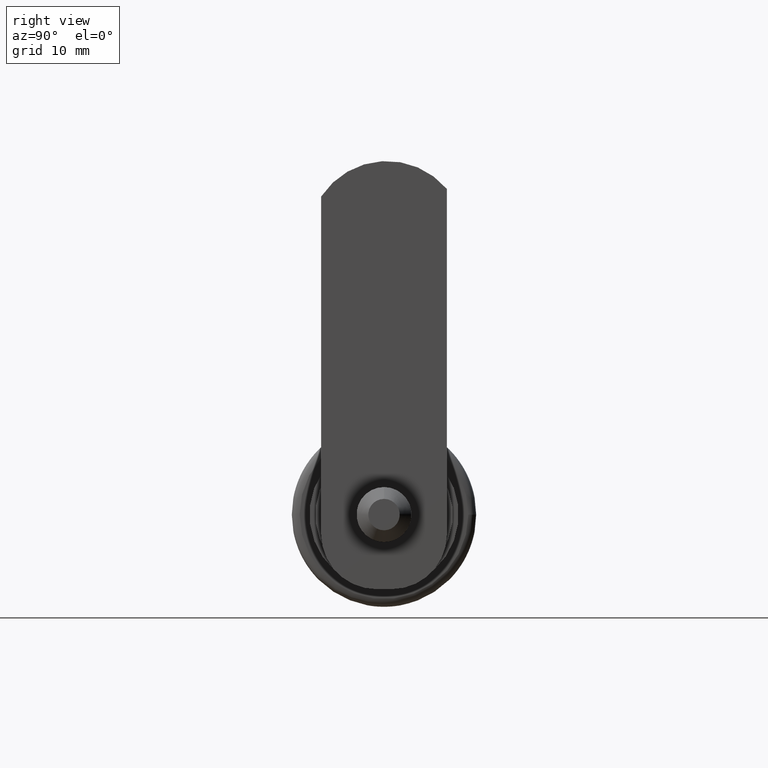
[diagram: clean part render]
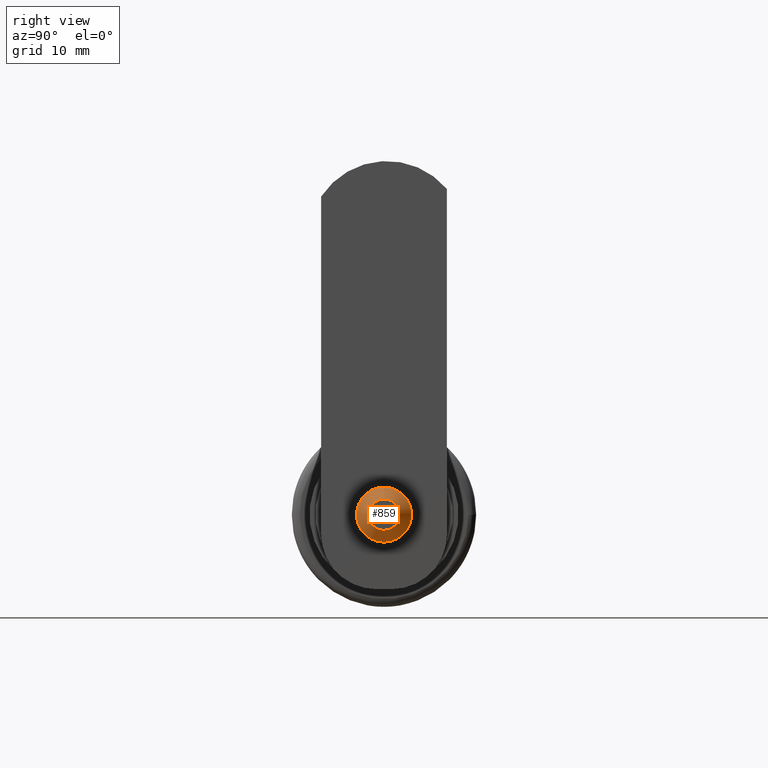
[diagram: same view with one face highlighted and labeled with its STEP entity id]
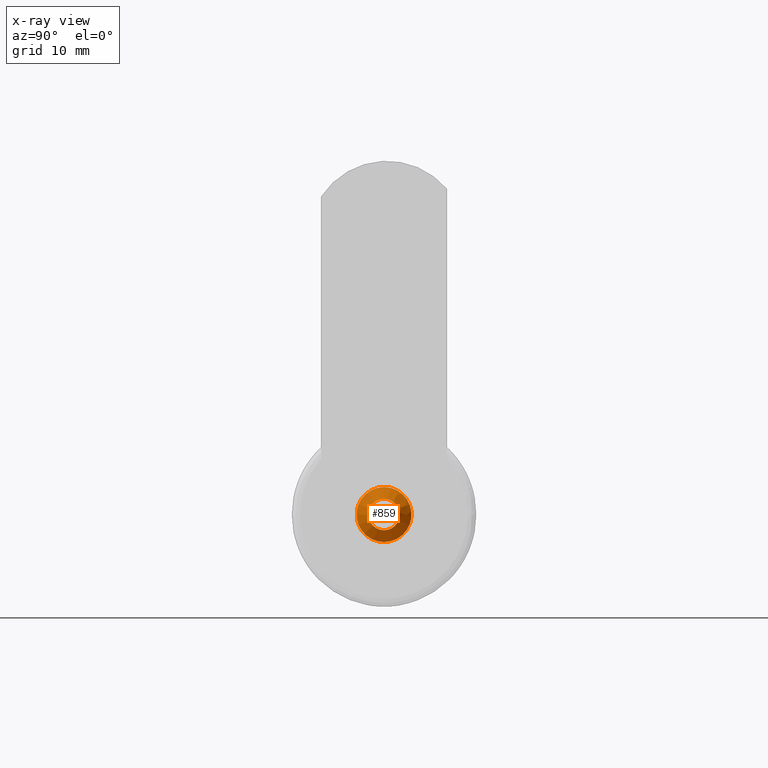
[diagram: x-ray of the same camera — body ghosted, the highlighted face saturated]
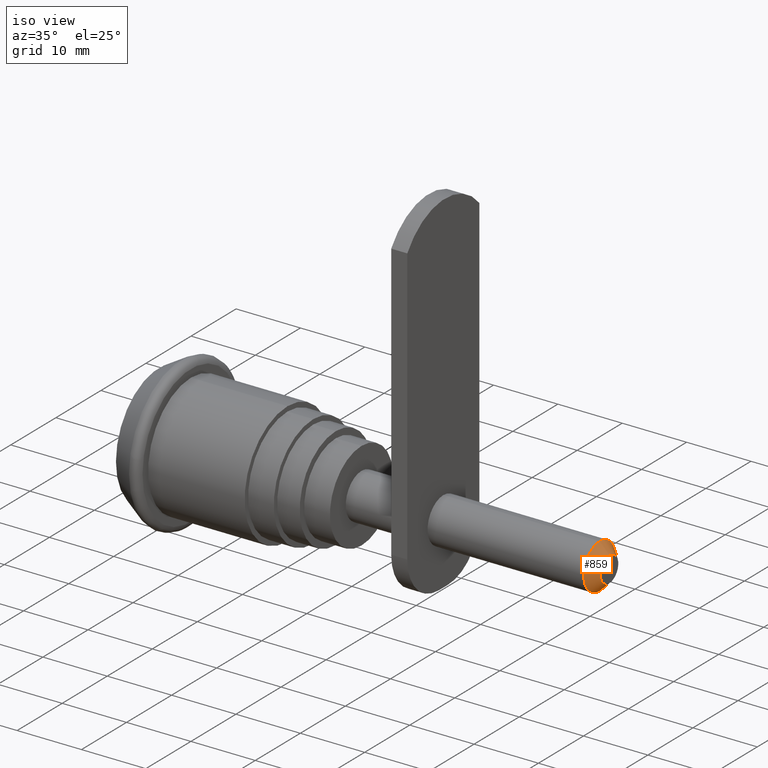
[diagram: same view with one face highlighted and labeled with its STEP entity id]
A machine part, right view. The second image highlights one B-rep face of the part: STEP entity #859.
The next image is the same camera in x-ray: the body ghosted, the highlighted face saturated — about 0% of this face is hidden behind the body in this view.
A second angle (iso view) of the same face is appended — the face is thin or edge-on in the first view.
In plain terms, the highlighted face is a freeform B-spline surface patch.
Its self-contained STEP definition (entity closure, byte-faithful):
#707=CARTESIAN_POINT('',(68.500114697285881,0.0,3.499999999985448));
#708=VERTEX_POINT('',#707);
#715=CARTESIAN_POINT('',(68.500114697285881,0.0,-3.499999999985448));
#716=VERTEX_POINT('',#715);
#717=CARTESIAN_POINT('',(68.500114697285881,0.0,0.0));
#718=DIRECTION('',(1.0,0.0,0.0));
#719=DIRECTION('',(0.0,0.0,1.0));
#720=AXIS2_PLACEMENT_3D('',#717,#718,#719);
#721=CIRCLE('',#720,3.499999999985448);
#722=EDGE_CURVE('',#716,#708,#721,.T.);
#724=CARTESIAN_POINT('',(68.500114697285881,0.0,0.0));
#725=DIRECTION('',(1.0,0.0,0.0));
#726=DIRECTION('',(0.0,0.0,1.0));
#727=AXIS2_PLACEMENT_3D('',#724,#725,#726);
#728=CIRCLE('',#727,3.499999999985448);
#729=EDGE_CURVE('',#708,#716,#728,.T.);
#740=CARTESIAN_POINT('',(70.000114697285881,0.0,1.999999999985448));
#741=VERTEX_POINT('',#740);
#742=CARTESIAN_POINT('',(70.000114697285881,0.0,-1.999999999985448));
#743=VERTEX_POINT('',#742);
#744=CARTESIAN_POINT('',(70.000114697285881,0.0,0.0));
#745=DIRECTION('',(1.0,0.0,0.0));
#746=DIRECTION('',(0.0,0.0,1.0));
#747=AXIS2_PLACEMENT_3D('',#744,#745,#746);
#748=CIRCLE('',#747,1.999999999985448);
#749=EDGE_CURVE('',#741,#743,#748,.T.);
#751=CARTESIAN_POINT('',(70.000114697285881,0.0,0.0));
#752=DIRECTION('',(1.0,0.0,0.0));
#753=DIRECTION('',(0.0,0.0,1.0));
#754=AXIS2_PLACEMENT_3D('',#751,#752,#753);
#755=CIRCLE('',#754,1.999999999985448);
#756=EDGE_CURVE('',#743,#741,#755,.T.);
#761=CARTESIAN_POINT('',(70.000114697285881,0.0,1.999999999985448));
#762=CARTESIAN_POINT('',(69.500114697285881,0.0,2.499999999985448));
#763=CARTESIAN_POINT('',(69.000114697285881,0.0,2.999999999985448));
#764=CARTESIAN_POINT('',(68.500114697285881,0.0,3.499999999985448));
#765=CARTESIAN_POINT('',(70.000114697285881,-0.260120429352945,1.999999999985448));
#766=CARTESIAN_POINT('',(69.500114697285881,-0.325150536691655,2.499999999985448));
#767=CARTESIAN_POINT('',(69.000114697285881,-0.390180644030364,2.999999999985448));
#768=CARTESIAN_POINT('',(68.500114697285881,-0.455210751369073,3.499999999985448));
#769=CARTESIAN_POINT('',(70.000114697285881,-0.656365924514303,1.921130088003495));
#770=CARTESIAN_POINT('',(69.500114697285881,-0.820457405644073,2.401412610007863));
#771=CARTESIAN_POINT('',(69.000114697285881,-0.984548886773843,2.881695132012231));
#772=CARTESIAN_POINT('',(68.500114697285881,-1.148640367903612,3.361977654016600));
#773=CARTESIAN_POINT('',(70.000114697285881,-1.118159017094916,1.673562262448380));
#774=CARTESIAN_POINT('',(69.500114697285881,-1.397698771370679,2.091952828063520));
#775=CARTESIAN_POINT('',(69.000114697285881,-1.677238525646442,2.510343393678659));
#776=CARTESIAN_POINT('',(68.500114697285881,-1.956778279922205,2.928733959293798));
#777=CARTESIAN_POINT('',(70.000114697285895,-1.523938886132108,1.341214745373533));
#778=CARTESIAN_POINT('',(69.500114697285881,-1.904923607667907,1.676518431719356));
#779=CARTESIAN_POINT('',(69.000114697285909,-2.285908329203706,2.011822118065179));
#780=CARTESIAN_POINT('',(68.500114697285895,-2.666893050739505,2.347125804411002));
#781=CARTESIAN_POINT('',(70.000114697285881,-1.896159759848355,0.785087854413765));
#782=CARTESIAN_POINT('',(69.500114697285909,-2.370199699813893,0.981359818018634));
#783=CARTESIAN_POINT('',(69.000114697285866,-2.844239639779430,1.177631781623503));
#784=CARTESIAN_POINT('',(68.500114697285881,-3.318279579744969,1.373903745228373));
#785=CARTESIAN_POINT('',(70.000114697285895,-2.051988812924118,0.000054829226021));
#786=CARTESIAN_POINT('',(69.500114697285881,-2.564986016158881,0.000068536532526));
#787=CARTESIAN_POINT('',(69.000114697285895,-3.077983219393643,0.000082243839032));
#788=CARTESIAN_POINT('',(68.500114697285881,-3.590980422628405,0.000095951145537));
#789=CARTESIAN_POINT('',(70.000114697285881,-1.895884988367861,-0.785307171317848));
#790=CARTESIAN_POINT('',(69.500114697285881,-2.369856235463274,-0.981633964148738));
#791=CARTESIAN_POINT('',(69.000114697285881,-2.843827482558689,-1.177960756979629));
#792=CARTESIAN_POINT('',(68.500114697285881,-3.317798729654102,-1.374287549810519));
#793=CARTESIAN_POINT('',(70.000114697285881,-1.451025623659215,-1.451027332302295));
#794=CARTESIAN_POINT('',(69.500114697285881,-1.813782029576658,-1.813784165380508));
#795=CARTESIAN_POINT('',(69.000114697285881,-2.176538435494101,-2.176540998458721));
#796=CARTESIAN_POINT('',(68.500114697285881,-2.539294841411544,-2.539297831536934));
#797=CARTESIAN_POINT('',(70.000114697285881,-0.785293891172113,-1.895864873649802));
#798=CARTESIAN_POINT('',(69.500114697285895,-0.981617363966570,-2.369831092065702));
#799=CARTESIAN_POINT('',(69.000114697285895,-1.177940836761026,-2.843797310481601));
#800=CARTESIAN_POINT('',(68.500114697285881,-1.374264309555483,-3.317763528897501));
#801=CARTESIAN_POINT('',(70.000114697285881,2.220446E-016,-2.052067563153271));
#802=CARTESIAN_POINT('',(69.500114697285881,2.775558E-016,-2.565084453945321));
#803=CARTESIAN_POINT('',(69.000114697285881,3.330669E-016,-3.078101344737372));
#804=CARTESIAN_POINT('',(68.500114697285881,4.996004E-016,-3.591118235529422));
#805=CARTESIAN_POINT('',(70.000114697285866,0.785293891172112,-1.895864873649802));
#806=CARTESIAN_POINT('',(69.500114697285866,0.981617363966568,-2.369831092065701));
#807=CARTESIAN_POINT('',(69.000114697285881,1.177940836761025,-2.843797310481600));
#808=CARTESIAN_POINT('',(68.500114697285852,1.374264309555481,-3.317763528897499));
#809=CARTESIAN_POINT('',(70.000114697285881,1.451025623659214,-1.451027332302296));
#810=CARTESIAN_POINT('',(69.500114697285895,1.813782029576657,-1.813784165380510));
#811=CARTESIAN_POINT('',(69.000114697285881,2.176538435494100,-2.176540998458723));
#812=CARTESIAN_POINT('',(68.500114697285909,2.539294841411543,-2.539297831536937));
#813=CARTESIAN_POINT('',(70.000114697285881,1.895884988367861,-0.785307171317849));
#814=CARTESIAN_POINT('',(69.500114697285895,2.369856235463274,-0.981633964148740));
#815=CARTESIAN_POINT('',(69.000114697285895,2.843827482558688,-1.177960756979631));
#816=CARTESIAN_POINT('',(68.500114697285895,3.317798729654102,-1.374287549810522));
#817=CARTESIAN_POINT('',(70.000114697285881,2.051988812924118,0.000054829226022));
#818=CARTESIAN_POINT('',(69.500114697285881,2.564986016158881,0.000068536532528));
#819=CARTESIAN_POINT('',(69.000114697285866,3.077983219393643,0.000082243839033));
#820=CARTESIAN_POINT('',(68.500114697285866,3.590980422628404,0.000095951145539));
#821=CARTESIAN_POINT('',(70.000114697285852,1.896159759848355,0.785087854413764));
#822=CARTESIAN_POINT('',(69.500114697285852,2.370199699813893,0.981359818018633));
#823=CARTESIAN_POINT('',(69.000114697285881,2.844239639779430,1.177631781623502));
#824=CARTESIAN_POINT('',(68.500114697285881,3.318279579744968,1.373903745228371));
#825=CARTESIAN_POINT('',(70.000114697285881,1.523938886132107,1.341214745373533));
#826=CARTESIAN_POINT('',(69.500114697285881,1.904923607667906,1.676518431719356));
#827=CARTESIAN_POINT('',(69.000114697285852,2.285908329203705,2.011822118065179));
#828=CARTESIAN_POINT('',(68.500114697285881,2.666893050739504,2.347125804411002));
#829=CARTESIAN_POINT('',(70.000114697285881,1.118159017094917,1.673562262448381));
#830=CARTESIAN_POINT('',(69.500114697285895,1.397698771370680,2.091952828063519));
#831=CARTESIAN_POINT('',(69.000114697285909,1.677238525646444,2.510343393678659));
#832=CARTESIAN_POINT('',(68.500114697285895,1.956778279922207,2.928733959293798));
#833=CARTESIAN_POINT('',(70.000114697285909,0.656365924514303,1.921130088003494));
#834=CARTESIAN_POINT('',(69.500114697285881,0.820457405644073,2.401412610007863));
#835=CARTESIAN_POINT('',(69.000114697285881,0.984548886773843,2.881695132012232));
#836=CARTESIAN_POINT('',(68.500114697285881,1.148640367903613,3.361977654016600));
#837=CARTESIAN_POINT('',(70.000114697285881,0.260120429352946,1.999999999985448));
#838=CARTESIAN_POINT('',(69.500114697285881,0.325150536691655,2.499999999985448));
#839=CARTESIAN_POINT('',(69.000114697285881,0.390180644030365,2.999999999985448));
#840=CARTESIAN_POINT('',(68.500114697285881,0.455210751369075,3.499999999985448));
#841=CARTESIAN_POINT('',(70.000114697285881,4.898587E-016,1.999999999985448));
#842=CARTESIAN_POINT('',(69.500114697285881,6.123234E-016,2.499999999985448));
#843=CARTESIAN_POINT('',(69.000114697285881,7.347881E-016,2.999999999985448));
#844=CARTESIAN_POINT('',(68.500114697285881,8.572528E-016,3.499999999985448));
#845=B_SPLINE_SURFACE_WITH_KNOTS('',3,3,((#761,#765,#769,#773,#777,#781,#785,#789,#793,#797,#801,#805,#809,#813,#817,#821,#825,#829,#833,#837,#841),(#762,#766,#770,#774,#778,#782,#786,#790,#794,#798,#802,#806,#810,#814,#818,#822,#826,#830,#834,#838,#842),(#763,#767,#771,#775,#779,#783,#787,#791,#795,#799,#803,#807,#811,#815,#819,#823,#827,#831,#835,#839,#843),(#764,#768,#772,#776,#780,#784,#788,#792,#796,#800,#804,#808,#812,#816,#820,#824,#828,#832,#836,#840,#844)),.UNSPECIFIED.,.F.,.T.,.U.,(4,4),(4,1,1,1,1,1,1,1,1,1,1,1,1,1,1,1,1,1,4),(0.0,2.121320343559642),(0.0,1.072996771083028,1.612091042892758,2.151185314702489,3.224182085785516,4.297178856868544,5.370175627951571,6.443172399034600,7.516169170117627,8.589165941200655,9.662162712283683,10.735159483366711,11.808156254449738,12.881153025532765,13.954149796615795,15.027146567698821,15.566240839508554,16.105335111318283,17.178331882401313),.UNSPECIFIED.);
#846=ORIENTED_EDGE('',*,*,#756,.F.);
#847=ORIENTED_EDGE('',*,*,#749,.F.);
#848=CARTESIAN_POINT('',(70.000114697285881,0.0,1.999999999985448));
#849=DIRECTION('',(-0.707106781186548,0.0,0.707106781186548));
#850=VECTOR('',#849,2.121320343559642);
#851=LINE('',#848,#850);
#852=EDGE_CURVE('',#741,#708,#851,.T.);
#853=ORIENTED_EDGE('',*,*,#852,.T.);
#854=ORIENTED_EDGE('',*,*,#729,.T.);
#855=ORIENTED_EDGE('',*,*,#722,.T.);
#856=ORIENTED_EDGE('',*,*,#852,.F.);
#857=EDGE_LOOP('',(#846,#847,#853,#854,#855,#856));
#858=FACE_OUTER_BOUND('',#857,.T.);
#859=ADVANCED_FACE('',(#858),#845,.T.);